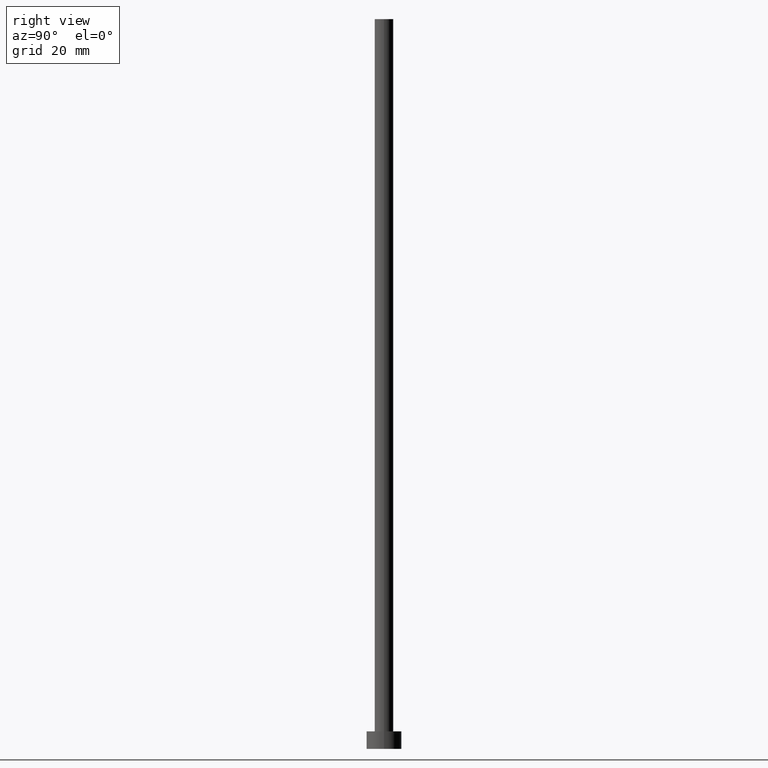
[diagram: clean part render]
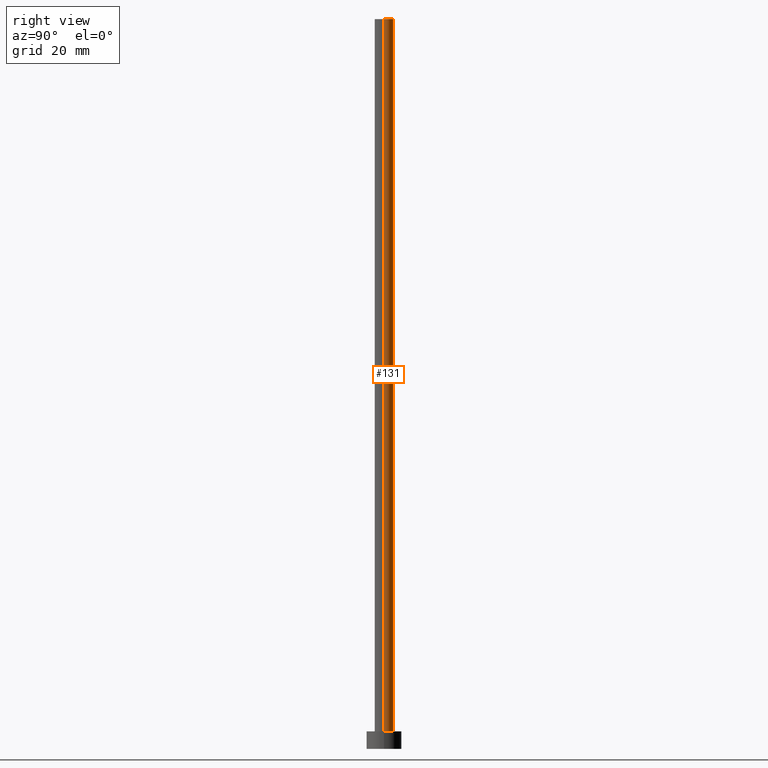
[diagram: same view with one face highlighted and labeled with its STEP entity id]
A machine part, right view. The second image highlights one B-rep face of the part: STEP entity #131.
In plain terms, the highlighted cylindrical surface (edge-blend (fillet) strip) has radius 1.6 mm, axis along (-0, -0, -1).
Its self-contained STEP definition (entity closure, byte-faithful):
#13 = CARTESIAN_POINT ( 'NONE',  ( 0.000000000000000000, 0.000000000000000000, 125.0000000000000000 ) ) ;
#20 = ORIENTED_EDGE ( 'NONE', *, *, #219, .F. ) ;
#35 = DIRECTION ( 'NONE',  ( 1.000000000000000000, 0.000000000000000000, 0.000000000000000000 ) ) ;
#37 = DIRECTION ( 'NONE',  ( -0.000000000000000000, -0.000000000000000000, -1.000000000000000000 ) ) ;
#40 = CARTESIAN_POINT ( 'NONE',  ( 1.600000000000000089, 1.959434878635764737E-16, 125.0000000000000000 ) ) ;
#51 = EDGE_CURVE ( 'NONE', #192, #96, #143, .T. ) ;
#52 = CARTESIAN_POINT ( 'NONE',  ( -1.600000000000000089, 0.000000000000000000, 3.000000000000000000 ) ) ;
#66 = VECTOR ( 'NONE', #37, 1000.000000000000000 ) ;
#69 = CYLINDRICAL_SURFACE ( 'NONE', #248, 1.600000000000000089 ) ;
#71 = CARTESIAN_POINT ( 'NONE',  ( 1.600000000000000089, 1.959434878635764737E-16, 3.000000000000000000 ) ) ;
#73 = FACE_OUTER_BOUND ( 'NONE', #220, .T. ) ;
#78 = DIRECTION ( 'NONE',  ( 0.000000000000000000, 0.000000000000000000, 1.000000000000000000 ) ) ;
#92 = DIRECTION ( 'NONE',  ( 1.000000000000000000, 0.000000000000000000, 0.000000000000000000 ) ) ;
#94 = AXIS2_PLACEMENT_3D ( 'NONE', #208, #147, #35 ) ;
#96 = VERTEX_POINT ( 'NONE', #52 ) ;
#111 = CARTESIAN_POINT ( 'NONE',  ( 0.000000000000000000, 0.000000000000000000, 125.0000000000000000 ) ) ;
#114 = CARTESIAN_POINT ( 'NONE',  ( -1.600000000000000089, 0.000000000000000000, 125.0000000000000000 ) ) ;
#122 = VERTEX_POINT ( 'NONE', #71 ) ;
#130 = DIRECTION ( 'NONE',  ( -1.000000000000000000, 0.000000000000000000, 0.000000000000000000 ) ) ;
#131 = ADVANCED_FACE ( 'NONE', ( #73 ), #69, .T. ) ;
#143 = LINE ( 'NONE', #236, #196 ) ;
#147 = DIRECTION ( 'NONE',  ( 0.000000000000000000, 0.000000000000000000, 1.000000000000000000 ) ) ;
#150 = DIRECTION ( 'NONE',  ( -0.000000000000000000, -0.000000000000000000, -1.000000000000000000 ) ) ;
#168 = EDGE_CURVE ( 'NONE', #122, #96, #190, .T. ) ;
#173 = VERTEX_POINT ( 'NONE', #40 ) ;
#177 = DIRECTION ( 'NONE',  ( -0.000000000000000000, -0.000000000000000000, -1.000000000000000000 ) ) ;
#178 = ORIENTED_EDGE ( 'NONE', *, *, #168, .T. ) ;
#190 = CIRCLE ( 'NONE', #94, 1.600000000000000089 ) ;
#192 = VERTEX_POINT ( 'NONE', #114 ) ;
#196 = VECTOR ( 'NONE', #177, 1000.000000000000000 ) ;
#197 = EDGE_CURVE ( 'NONE', #173, #122, #209, .T. ) ;
#200 = ORIENTED_EDGE ( 'NONE', *, *, #197, .T. ) ;
#208 = CARTESIAN_POINT ( 'NONE',  ( 0.000000000000000000, 0.000000000000000000, 3.000000000000000000 ) ) ;
#209 = LINE ( 'NONE', #249, #66 ) ;
#215 = AXIS2_PLACEMENT_3D ( 'NONE', #111, #78, #92 ) ;
#219 = EDGE_CURVE ( 'NONE', #173, #192, #242, .T. ) ;
#220 = EDGE_LOOP ( 'NONE', ( #20, #200, #178, #252 ) ) ;
#236 = CARTESIAN_POINT ( 'NONE',  ( -1.600000000000000089, 0.000000000000000000, 125.0000000000000000 ) ) ;
#242 = CIRCLE ( 'NONE', #215, 1.600000000000000089 ) ;
#248 = AXIS2_PLACEMENT_3D ( 'NONE', #13, #150, #130 ) ;
#249 = CARTESIAN_POINT ( 'NONE',  ( 1.600000000000000089, 1.959434878635764737E-16, 125.0000000000000000 ) ) ;
#252 = ORIENTED_EDGE ( 'NONE', *, *, #51, .F. ) ;